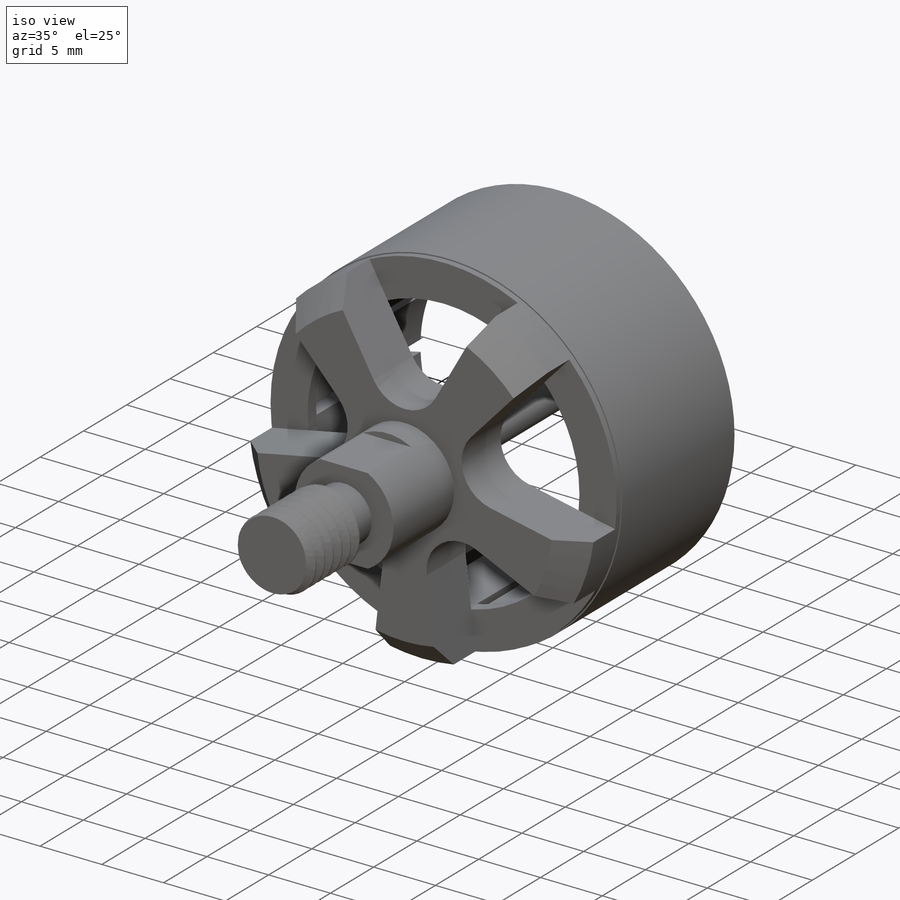
[diagram: iso view]
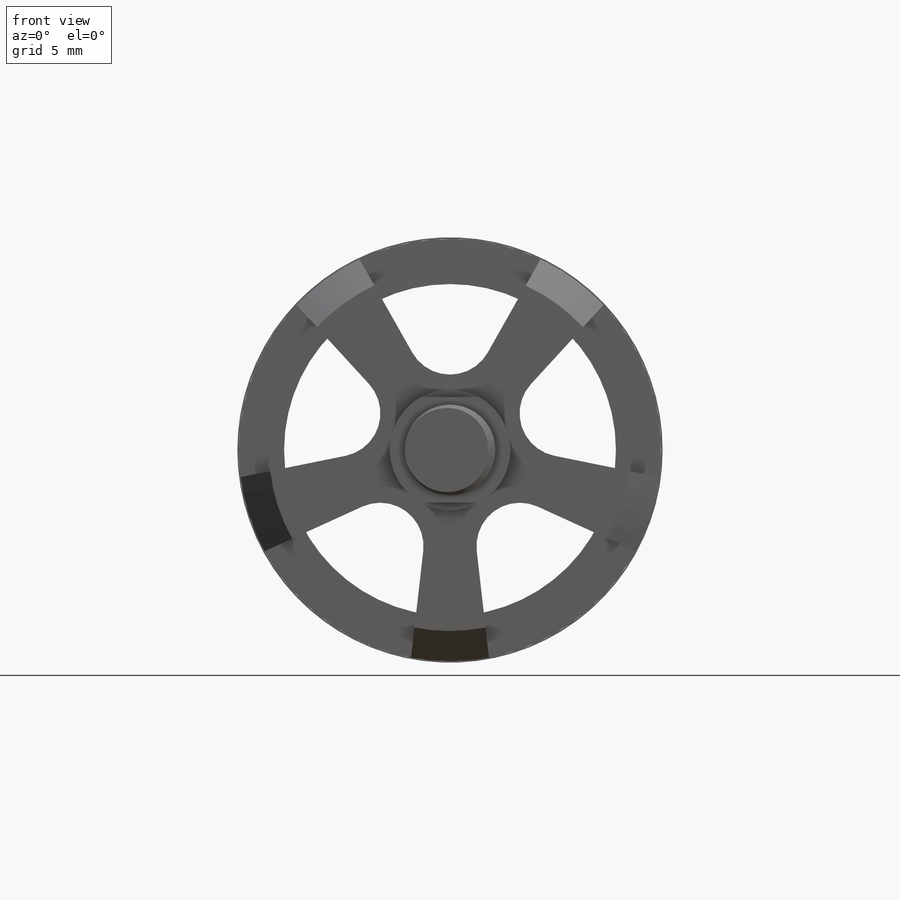
[diagram: front view]
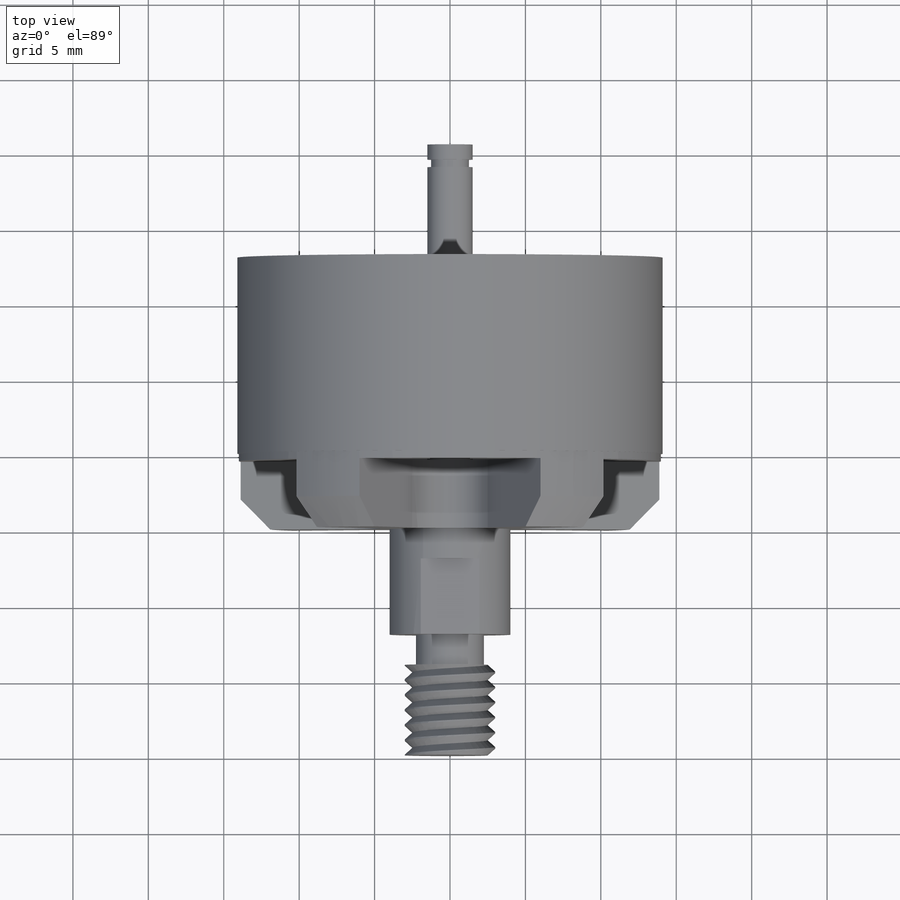
[diagram: top view]
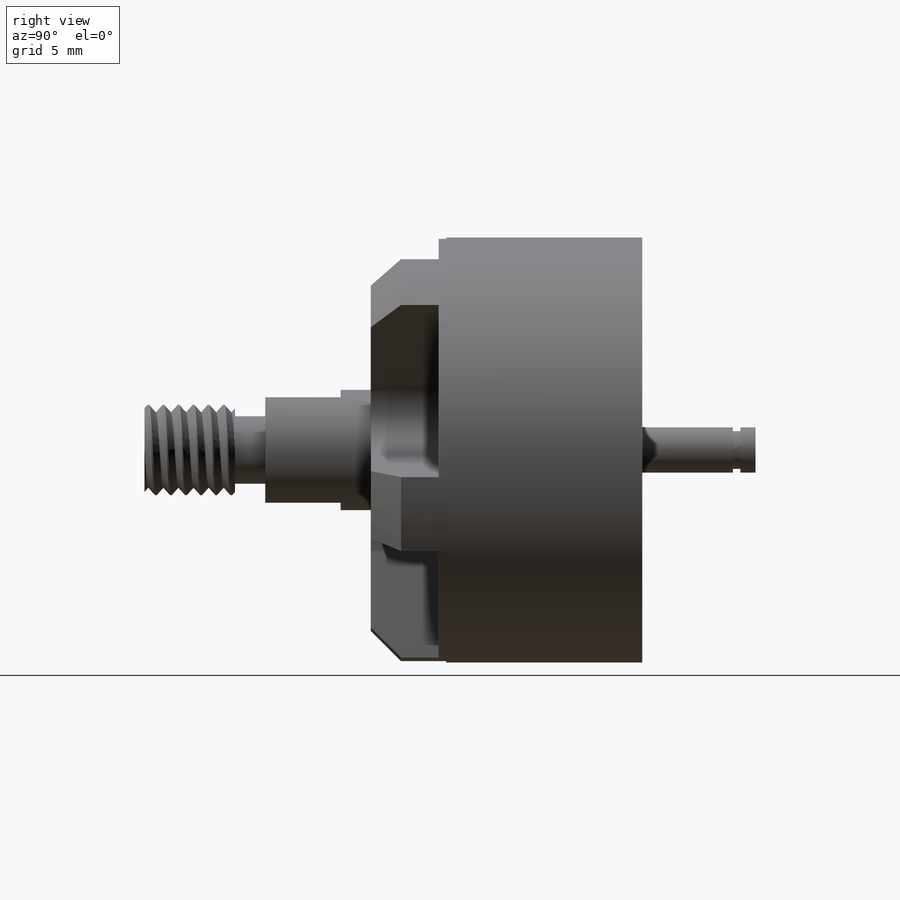
[diagram: right view]
SOLIDWORKS PART (.sldprt)
format: sldprt  version: not decoded by parser v0  size: 640,512 bytes
history: native  units: mm
features: sketch x9, extrude x3, cut_extrude x2, material x1, revolve x1, plane x1, helix x1, sweep x1, cut_revolve x1 (+13 scaffold rows collapsed)
feature tree (33):
  scaffold x13  (default folders/planes/origin — collapsed)
  material  "6061 Alloy"
  sketch  "Sketch2"  dims[c1.D1=6.0mm c1.D2=6.0mm c1.D3=2.0mm c1.D4=5.0mm c1.D5=2.0mm c1.D6=4.5mm c1.D7=2.0mm c1.D8=~3.75569mm c2.D8=45.0deg c2.D9=4.5mm c2.D10=7.0mm c2.D11=8.0mm c2.D12=28.0mm c2.D13=33.0mm c2.D14=1.0mm c2.D15=3.0mm c2.D16=40.5mm c2.D4=7.0mm]
  revolve  "Revolve1"  Angle=360deg
  sketch  "Sketch3"  dims[c1.D1=~0.066958mm c1.D2=12.0mm c1.D3=9.0mm c2.D1=5.0mm c2.D4=5.0]
  cut_extrude  "Cut-Extrude1"  Depth=4.5mm
  sketch  "Sketch4"  dims[D1=3.0mm]
  extrude  "Boss-Extrude1"  Depth=1mm
  plane  "Plane1"  Offset=0.45mm
  sketch  "Sketch5"  dims[D1=2.0mm D2=4.0mm D3=4.0mm D4=14.0]
  extrude  "Boss-Extrude2"  Depth=12mm
  sketch  "Sketch6"  dims[c1.D1=~0.598224mm c1.D2=~3.063631mm c2.D1=~0.798729mm c2.D2=~5.779643mm c3.D1=7.0mm c3.D2=7.0mm c4.D1=7.0mm c4.D2=7.0mm c5.D1=7.0mm c5.D2=1.0mm]
  cut_extrude  "Cut-Extrude2"  Depth=5mm
  sketch  "Sketch7"  dims[D1=0.0mm]
  helix  "Helix/Spiral1"  Pitch=6mm
  sketch  "Sketch9"  dims[c1.D1=0.5mm c1.D2=2.5mm c2.D1=5.0mm c2.D2=~0.989827mm c2.D3=0.55mm]
  sweep  "Cut-Sweep1"
  sketch  "Sketch10"  dims[D1=0.1mm]
  extrude  "Boss-Extrude3"  Depth=13mm
  sketch  "Sketch11"  dims[c1.D1=~0.478579mm c1.D2=~0.541549mm c2.D1=0.5mm c2.D2=1.0mm c2.D3=2.5mm]
  cut_revolve  "Cut-Revolve1"  Angle=360deg
decode coverage: 17 of 18 modeling features carry decoded parameters
note: ~ marks probable driven/reference dimensions
note: suppression state not decoded; provenance and decode notes live in map.json
